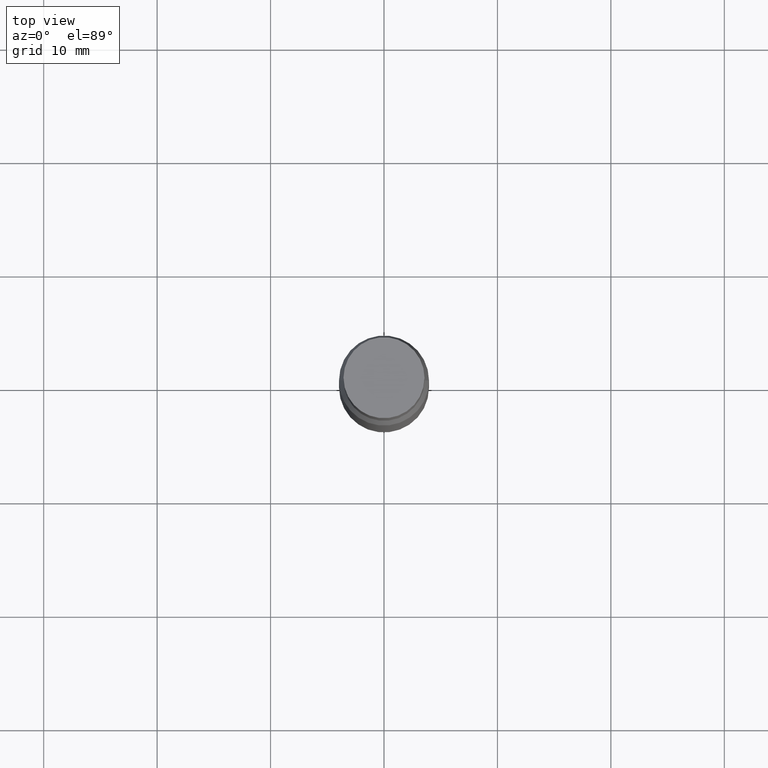
[diagram: clean part render]
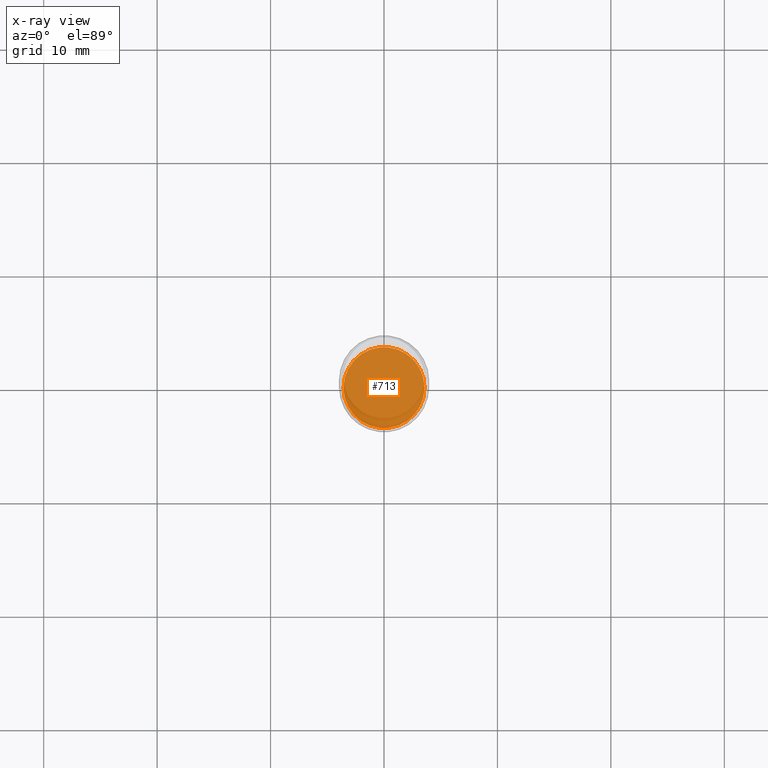
[diagram: x-ray — body ghosted, one internal face saturated and labeled with its STEP entity id]
A machine part, top view, then the same camera in x-ray: the body is ghosted and one INTERNAL B-rep face — a face not visible from any outside direction — is saturated and labeled: STEP entity #713.
In plain terms, the highlighted planar face has unit normal (0, -0, -1).
Its self-contained STEP definition (entity closure, byte-faithful):
#23 = DIRECTION ( 'NONE',  ( -1.000000000000000000, 6.982962677686265922E-15, -4.876176775795935793E-29 ) ) ;
#63 = EDGE_CURVE ( 'NONE', #607, #732, #274, .T. ) ;
#170 = DIRECTION ( 'NONE',  ( -2.445468806185136597E-29, 3.491481338843145583E-15, 1.000000000000000000 ) ) ;
#239 = CARTESIAN_POINT ( 'NONE',  ( 4.890937612370273754E-29, -6.982962677686291954E-15, -2.000000000000000444 ) ) ;
#274 = CIRCLE ( 'NONE', #796, 0.1406000000000000028 ) ;
#288 = CARTESIAN_POINT ( 'NONE',  ( 0.1406000000000000028, -7.964767230168980271E-15, -2.000000000000000444 ) ) ;
#306 = EDGE_CURVE ( 'NONE', #732, #607, #361, .T. ) ;
#318 = DIRECTION ( 'NONE',  ( -2.445468806185136597E-29, 3.491481338843145583E-15, 1.000000000000000000 ) ) ;
#319 = DIRECTION ( 'NONE',  ( 1.000000000000000000, -6.982962677686265133E-15, 0.000000000000000000 ) ) ;
#361 = CIRCLE ( 'NONE', #379, 0.1406000000000000028 ) ;
#379 = AXIS2_PLACEMENT_3D ( 'NONE', #907, #170, #319 ) ;
#483 = AXIS2_PLACEMENT_3D ( 'NONE', #940, #870, #23 ) ;
#565 = DIRECTION ( 'NONE',  ( 1.000000000000000000, -6.982962677686265133E-15, 0.000000000000000000 ) ) ;
#578 = FACE_OUTER_BOUND ( 'NONE', #945, .T. ) ;
#607 = VERTEX_POINT ( 'NONE', #288 ) ;
#624 = ORIENTED_EDGE ( 'NONE', *, *, #63, .T. ) ;
#661 = ORIENTED_EDGE ( 'NONE', *, *, #306, .T. ) ;
#713 = ADVANCED_FACE ( 'NONE', ( #578 ), #926, .F. ) ;
#715 = CARTESIAN_POINT ( 'NONE',  ( -0.1406000000000000028, -6.856809925918377173E-15, -2.000000000000000444 ) ) ;
#732 = VERTEX_POINT ( 'NONE', #715 ) ;
#796 = AXIS2_PLACEMENT_3D ( 'NONE', #239, #318, #565 ) ;
#870 = DIRECTION ( 'NONE',  ( 2.438088387897960049E-29, -3.491481338843145188E-15, -1.000000000000000000 ) ) ;
#907 = CARTESIAN_POINT ( 'NONE',  ( 4.890937612370273754E-29, -6.982962677686291954E-15, -2.000000000000000444 ) ) ;
#926 = PLANE ( 'NONE',  #483 ) ;
#940 = CARTESIAN_POINT ( 'NONE',  ( 9.818045524827378180E-16, 0.1405999999999930083, -2.000000000000000444 ) ) ;
#945 = EDGE_LOOP ( 'NONE', ( #624, #661 ) ) ;